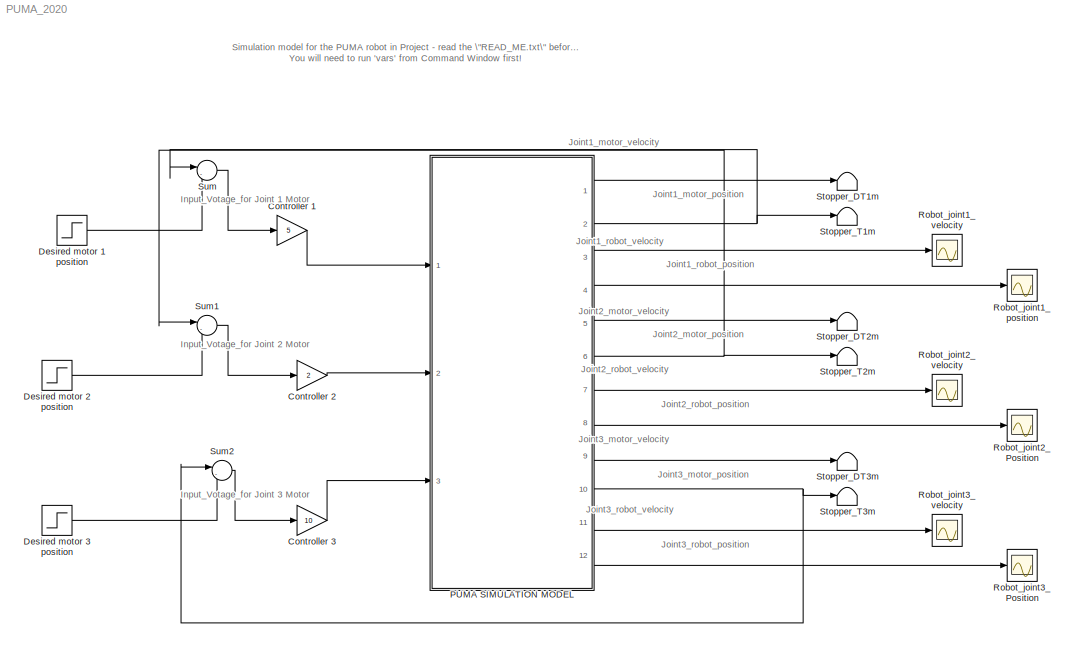
MODEL PUMA_2020
KIND model
BLOCK [Gain] Controller 1
  Gain = 5
  SID = 167
BLOCK [Gain] Controller 2
  Gain = 2
  SID = 169
BLOCK [Gain] Controller 3
  Gain = 10
  SID = 170
BLOCK [Step] Desired motor 1 position
  After = 0.5*ng1
  SID = 86
  SampleTime = 0
  Time = 0
BLOCK [Step] Desired motor 2 position
  After = -1*ng2
  SID = 172
  SampleTime = 0
  Time = 0
BLOCK [Step] Desired motor 3 position
  After = -1*ng3
  SID = 88
  SampleTime = 0
  Time = 0
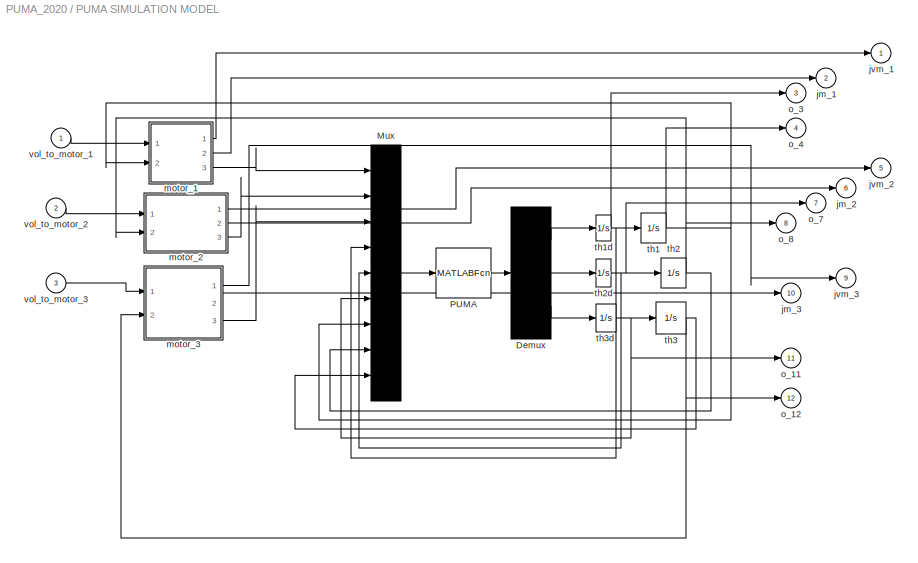
BLOCK [SubSystem] PUMA SIMULATION MODEL
  Ports = [3, 12]
  RequestExecContextInheritance = off
  SID = 1
BLOCK [Demux] PUMA SIMULATION MODEL/Demux
  DisplayOption = none
  Outputs = 3
  Ports = [1, 3]
  SID = 5
BLOCK [Mux] PUMA SIMULATION MODEL/Mux
  Inputs = 9
  Ports = [9, 1]
  SID = 6
BLOCK [MATLABFcn] PUMA SIMULATION MODEL/PUMA
  MATLABFcn = puma
  OutputDimensions = 3
  Ports = [1, 1]
  SID = 7
BLOCK [Outport] PUMA SIMULATION MODEL/jm_1
  InitialOutput = 0
  Port = 2
  SID = 75
  VectorParamsAs1DForOutWhenUnconnected = off
BLOCK [Outport] PUMA SIMULATION MODEL/jm_2
  InitialOutput = 0
  Port = 6
  SID = 79
  VectorParamsAs1DForOutWhenUnconnected = off
BLOCK [Outport] PUMA SIMULATION MODEL/jm_3
  InitialOutput = 0
  Port = 10
  SID = 83
  VectorParamsAs1DForOutWhenUnconnected = off
BLOCK [Outport] PUMA SIMULATION MODEL/jvm_1
  InitialOutput = 0
  SID = 74
  VectorParamsAs1DForOutWhenUnconnected = off
BLOCK [Outport] PUMA SIMULATION MODEL/jvm_2
  InitialOutput = 0
  Port = 5
  SID = 78
  VectorParamsAs1DForOutWhenUnconnected = off
BLOCK [Outport] PUMA SIMULATION MODEL/jvm_3
  InitialOutput = 0
  Port = 9
  SID = 82
  VectorParamsAs1DForOutWhenUnconnected = off
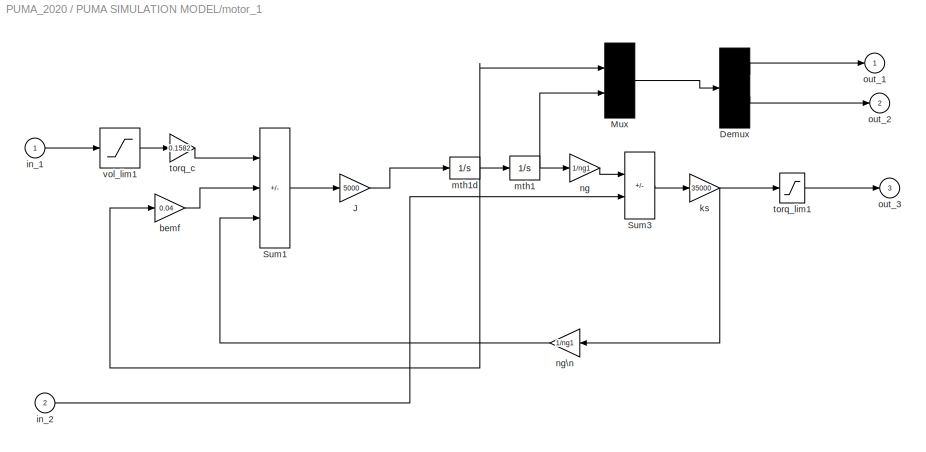
BLOCK [SubSystem] PUMA SIMULATION MODEL/motor_1
  Ports = [2, 3]
  RequestExecContextInheritance = off
  SID = 8
BLOCK [Demux] PUMA SIMULATION MODEL/motor_1/Demux
  DisplayOption = none
  Outputs = 2
  Ports = [1, 2]
  SID = 11
BLOCK [Gain] PUMA SIMULATION MODEL/motor_1/J
  Gain = 5000
  OutDataTypeStr = Inherit: Same as input
  ParamDataTypeStr = Inherit: Same as input
  SID = 12
  SaturateOnIntegerOverflow = on
BLOCK [Mux] PUMA SIMULATION MODEL/motor_1/Mux
  Inputs = 2
  Ports = [2, 1]
  SID = 13
BLOCK [Sum] PUMA SIMULATION MODEL/motor_1/Sum1
  IconShape = rectangular
  InputSameDT = on
  Inputs = +--
  OutDataTypeStr = Inherit: Same as first input
  Ports = [3, 1]
  SID = 14
  SaturateOnIntegerOverflow = on
BLOCK [Sum] PUMA SIMULATION MODEL/motor_1/Sum3
  IconShape = rectangular
  InputSameDT = on
  Inputs = +-
  OutDataTypeStr = Inherit: Same as first input
  Ports = [2, 1]
  SID = 15
  SaturateOnIntegerOverflow = on
BLOCK [Gain] PUMA SIMULATION MODEL/motor_1/bemf
  Gain = 0.04
  OutDataTypeStr = Inherit: Same as input
  ParamDataTypeStr = Inherit: Same as input
  SID = 16
  SaturateOnIntegerOverflow = on
BLOCK [Inport] PUMA SIMULATION MODEL/motor_1/in_1
  SID = 9
BLOCK [Inport] PUMA SIMULATION MODEL/motor_1/in_2
  Port = 2
  SID = 10
BLOCK [Gain] PUMA SIMULATION MODEL/motor_1/ks
  Gain = 35000
  OutDataTypeStr = Inherit: Same as input
  ParamDataTypeStr = Inherit: Same as input
  SID = 17
  SaturateOnIntegerOverflow = on
BLOCK [Integrator] PUMA SIMULATION MODEL/motor_1/mth1
  InitialCondition = ng1*thr10
  Ports = [1, 1]
  SID = 18
BLOCK [Integrator] PUMA SIMULATION MODEL/motor_1/mth1d
  Ports = [1, 1]
  SID = 19
BLOCK [Gain] PUMA SIMULATION MODEL/motor_1/ng
  Gain = 1/ng1
  OutDataTypeStr = Inherit: Same as input
  ParamDataTypeStr = Inherit: Same as input
  SID = 20
  SaturateOnIntegerOverflow = on
BLOCK [Gain] PUMA SIMULATION MODEL/motor_1/ng\n
  Gain = 1/ng1
  OutDataTypeStr = Inherit: Same as input
  ParamDataTypeStr = Inherit: Same as input
  SID = 21
  SaturateOnIntegerOverflow = on
BLOCK [Outport] PUMA SIMULATION MODEL/motor_1/out_1
  InitialOutput = 0
  SID = 25
  VectorParamsAs1DForOutWhenUnconnected = off
BLOCK [Outport] PUMA SIMULATION MODEL/motor_1/out_2
  InitialOutput = 0
  Port = 2
  SID = 26
  VectorParamsAs1DForOutWhenUnconnected = off
BLOCK [Outport] PUMA SIMULATION MODEL/motor_1/out_3
  InitialOutput = 0
  Port = 3
  SID = 27
  VectorParamsAs1DForOutWhenUnconnected = off
BLOCK [Gain] PUMA SIMULATION MODEL/motor_1/torq_c
  Gain = 0.1582
  OutDataTypeStr = Inherit: Same as input
  ParamDataTypeStr = Inherit: Same as input
  SID = 22
  SaturateOnIntegerOverflow = on
BLOCK [Saturate] PUMA SIMULATION MODEL/motor_1/torq_lim1
  LowerLimit = -1.2*ng1
  SID = 23
  UpperLimit = 1.2*ng1
BLOCK [Saturate] PUMA SIMULATION MODEL/motor_1/vol_lim1
  LowerLimit = -40
  SID = 24
  UpperLimit = 40
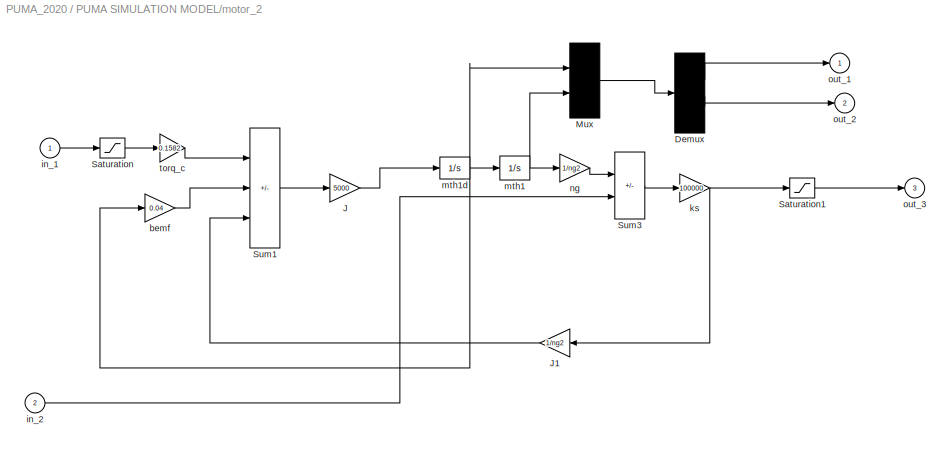
BLOCK [SubSystem] PUMA SIMULATION MODEL/motor_2
  Ports = [2, 3]
  RequestExecContextInheritance = off
  SID = 28
BLOCK [Demux] PUMA SIMULATION MODEL/motor_2/Demux
  DisplayOption = none
  Outputs = 2
  Ports = [1, 2]
  SID = 31
BLOCK [Gain] PUMA SIMULATION MODEL/motor_2/J
  Gain = 5000
  OutDataTypeStr = Inherit: Same as input
  ParamDataTypeStr = Inherit: Same as input
  SID = 32
  SaturateOnIntegerOverflow = on
BLOCK [Gain] PUMA SIMULATION MODEL/motor_2/J1
  Gain = 1/ng2
  OutDataTypeStr = Inherit: Same as input
  ParamDataTypeStr = Inherit: Same as input
  SID = 33
  SaturateOnIntegerOverflow = on
BLOCK [Mux] PUMA SIMULATION MODEL/motor_2/Mux
  Inputs = 2
  Ports = [2, 1]
  SID = 34
BLOCK [Saturate] PUMA SIMULATION MODEL/motor_2/Saturation
  LowerLimit = -40
  SID = 35
  UpperLimit = 40
BLOCK [Saturate] PUMA SIMULATION MODEL/motor_2/Saturation1
  LowerLimit = -ng2*1.2
  SID = 36
  UpperLimit = ng2*1.2
BLOCK [Sum] PUMA SIMULATION MODEL/motor_2/Sum1
  IconShape = rectangular
  InputSameDT = on
  Inputs = +--
  OutDataTypeStr = Inherit: Same as first input
  Ports = [3, 1]
  SID = 37
  SaturateOnIntegerOverflow = on
BLOCK [Sum] PUMA SIMULATION MODEL/motor_2/Sum3
  IconShape = rectangular
  InputSameDT = on
  Inputs = +-
  OutDataTypeStr = Inherit: Same as first input
  Ports = [2, 1]
  SID = 38
  SaturateOnIntegerOverflow = on
BLOCK [Gain] PUMA SIMULATION MODEL/motor_2/bemf
  Gain = 0.04
  OutDataTypeStr = Inherit: Same as input
  ParamDataTypeStr = Inherit: Same as input
  SID = 39
  SaturateOnIntegerOverflow = on
BLOCK [Inport] PUMA SIMULATION MODEL/motor_2/in_1
  SID = 29
BLOCK [Inport] PUMA SIMULATION MODEL/motor_2/in_2
  Port = 2
  SID = 30
BLOCK [Gain] PUMA SIMULATION MODEL/motor_2/ks
  Gain = 100000
  OutDataTypeStr = Inherit: Same as input
  ParamDataTypeStr = Inherit: Same as input
  SID = 40
  SaturateOnIntegerOverflow = on
BLOCK [Integrator] PUMA SIMULATION MODEL/motor_2/mth1
  InitialCondition = thr20*ng2
  Ports = [1, 1]
  SID = 41
BLOCK [Integrator] PUMA SIMULATION MODEL/motor_2/mth1d
  Ports = [1, 1]
  SID = 42
BLOCK [Gain] PUMA SIMULATION MODEL/motor_2/ng
  Gain = 1/ng2
  OutDataTypeStr = Inherit: Same as input
  ParamDataTypeStr = Inherit: Same as input
  SID = 43
  SaturateOnIntegerOverflow = on
BLOCK [Outport] PUMA SIMULATION MODEL/motor_2/out_1
  InitialOutput = 0
  SID = 45
  VectorParamsAs1DForOutWhenUnconnected = off
BLOCK [Outport] PUMA SIMULATION MODEL/motor_2/out_2
  InitialOutput = 0
  Port = 2
  SID = 46
  VectorParamsAs1DForOutWhenUnconnected = off
BLOCK [Outport] PUMA SIMULATION MODEL/motor_2/out_3
  InitialOutput = 0
  Port = 3
  SID = 47
  VectorParamsAs1DForOutWhenUnconnected = off
BLOCK [Gain] PUMA SIMULATION MODEL/motor_2/torq_c
  Gain = 0.1582
  OutDataTypeStr = Inherit: Same as input
  ParamDataTypeStr = Inherit: Same as input
  SID = 44
  SaturateOnIntegerOverflow = on
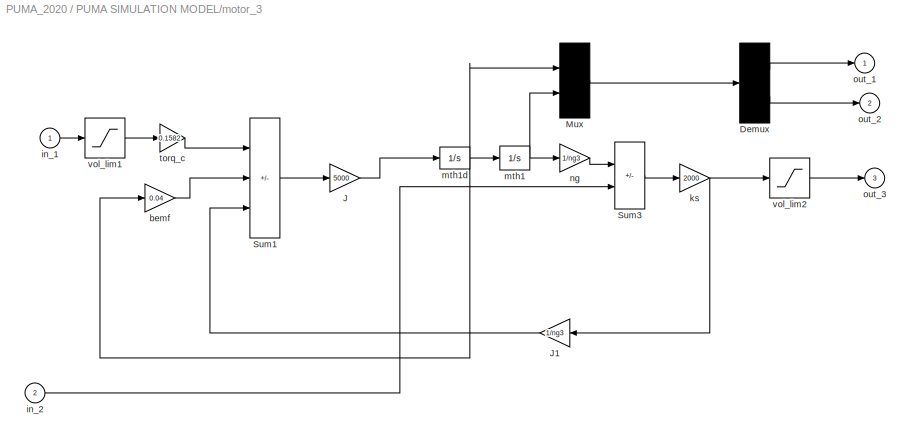
BLOCK [SubSystem] PUMA SIMULATION MODEL/motor_3
  Ports = [2, 3]
  RequestExecContextInheritance = off
  SID = 48
BLOCK [Demux] PUMA SIMULATION MODEL/motor_3/Demux
  DisplayOption = none
  Outputs = 2
  Ports = [1, 2]
  SID = 51
BLOCK [Gain] PUMA SIMULATION MODEL/motor_3/J
  Gain = 5000
  OutDataTypeStr = Inherit: Same as input
  ParamDataTypeStr = Inherit: Same as input
  SID = 52
  SaturateOnIntegerOverflow = on
BLOCK [Gain] PUMA SIMULATION MODEL/motor_3/J1
  Gain = 1/ng3
  OutDataTypeStr = Inherit: Same as input
  ParamDataTypeStr = Inherit: Same as input
  SID = 53
  SaturateOnIntegerOverflow = on
BLOCK [Mux] PUMA SIMULATION MODEL/motor_3/Mux
  Inputs = 2
  Ports = [2, 1]
  SID = 54
BLOCK [Sum] PUMA SIMULATION MODEL/motor_3/Sum1
  IconShape = rectangular
  InputSameDT = on
  Inputs = +--
  OutDataTypeStr = Inherit: Same as first input
  Ports = [3, 1]
  SID = 55
  SaturateOnIntegerOverflow = on
BLOCK [Sum] PUMA SIMULATION MODEL/motor_3/Sum3
  IconShape = rectangular
  InputSameDT = on
  Inputs = +-
  OutDataTypeStr = Inherit: Same as first input
  Ports = [2, 1]
  SID = 56
  SaturateOnIntegerOverflow = on
BLOCK [Gain] PUMA SIMULATION MODEL/motor_3/bemf
  Gain = 0.04
  OutDataTypeStr = Inherit: Same as input
  ParamDataTypeStr = Inherit: Same as input
  SID = 57
  SaturateOnIntegerOverflow = on
BLOCK [Inport] PUMA SIMULATION MODEL/motor_3/in_1
  SID = 49
BLOCK [Inport] PUMA SIMULATION MODEL/motor_3/in_2
  Port = 2
  SID = 50
BLOCK [Gain] PUMA SIMULATION MODEL/motor_3/ks
  Gain = 2000
  OutDataTypeStr = Inherit: Same as input
  ParamDataTypeStr = Inherit: Same as input
  SID = 58
  SaturateOnIntegerOverflow = on
BLOCK [Integrator] PUMA SIMULATION MODEL/motor_3/mth1
  InitialCondition = thr30*ng3
  Ports = [1, 1]
  SID = 59
BLOCK [Integrator] PUMA SIMULATION MODEL/motor_3/mth1d
  Ports = [1, 1]
  SID = 60
BLOCK [Gain] PUMA SIMULATION MODEL/motor_3/ng
  Gain = 1/ng3
  OutDataTypeStr = Inherit: Same as input
  ParamDataTypeStr = Inherit: Same as input
  SID = 61
  SaturateOnIntegerOverflow = on
BLOCK [Outport] PUMA SIMULATION MODEL/motor_3/out_1
  InitialOutput = 0
  SID = 65
  VectorParamsAs1DForOutWhenUnconnected = off
BLOCK [Outport] PUMA SIMULATION MODEL/motor_3/out_2
  InitialOutput = 0
  Port = 2
  SID = 66
  VectorParamsAs1DForOutWhenUnconnected = off
BLOCK [Outport] PUMA SIMULATION MODEL/motor_3/out_3
  InitialOutput = 0
  Port = 3
  SID = 67
  VectorParamsAs1DForOutWhenUnconnected = off
BLOCK [Gain] PUMA SIMULATION MODEL/motor_3/torq_c
  Gain = 0.1582
  OutDataTypeStr = Inherit: Same as input
  ParamDataTypeStr = Inherit: Same as input
  SID = 62
  SaturateOnIntegerOverflow = on
BLOCK [Saturate] PUMA SIMULATION MODEL/motor_3/vol_lim1
  LowerLimit = -40
  SID = 63
  UpperLimit = 40
BLOCK [Saturate] PUMA SIMULATION MODEL/motor_3/vol_lim2
  LowerLimit = -1.2*ng3
  SID = 64
  UpperLimit = 1.2*ng3
BLOCK [Outport] PUMA SIMULATION MODEL/o_11
  InitialOutput = 0
  Port = 11
  SID = 84
  VectorParamsAs1DForOutWhenUnconnected = off
BLOCK [Outport] PUMA SIMULATION MODEL/o_12
  InitialOutput = 0
  Port = 12
  SID = 85
  VectorParamsAs1DForOutWhenUnconnected = off
BLOCK [Outport] PUMA SIMULATION MODEL/o_3
  InitialOutput = 0
  Port = 3
  SID = 76
  VectorParamsAs1DForOutWhenUnconnected = off
BLOCK [Outport] PUMA SIMULATION MODEL/o_4
  InitialOutput = 0
  Port = 4
  SID = 77
  VectorParamsAs1DForOutWhenUnconnected = off
BLOCK [Outport] PUMA SIMULATION MODEL/o_7
  InitialOutput = 0
  Port = 7
  SID = 80
  VectorParamsAs1DForOutWhenUnconnected = off
BLOCK [Outport] PUMA SIMULATION MODEL/o_8
  InitialOutput = 0
  Port = 8
  SID = 81
  VectorParamsAs1DForOutWhenUnconnected = off
BLOCK [Integrator] PUMA SIMULATION MODEL/th1
  InitialCondition = thr10
  Ports = [1, 1]
  SID = 68
BLOCK [Integrator] PUMA SIMULATION MODEL/th1d
  Ports = [1, 1]
  SID = 69
BLOCK [Integrator] PUMA SIMULATION MODEL/th2
  InitialCondition = thr20
  Ports = [1, 1]
  SID = 70
BLOCK [Integrator] PUMA SIMULATION MODEL/th2d
  Ports = [1, 1]
  SID = 71
BLOCK [Integrator] PUMA SIMULATION MODEL/th3
  InitialCondition = thr30
  Ports = [1, 1]
  SID = 72
BLOCK [Integrator] PUMA SIMULATION MODEL/th3d
  Ports = [1, 1]
  SID = 73
BLOCK [Inport] PUMA SIMULATION MODEL/vol_to_motor_1
  SID = 2
BLOCK [Inport] PUMA SIMULATION MODEL/vol_to_motor_2
  Port = 2
  SID = 3
BLOCK [Inport] PUMA SIMULATION MODEL/vol_to_motor_3
  Port = 3
  SID = 4
BLOCK [Scope] Robot_joint1_position
  Floating = off
  NumInputPorts = 1
  Ports = [1]
  SID = 147
  ScopeSpecificationString = Simulink.scopes.TimeScopeBlockCfg('CurrentConfiguration', extmgr.ConfigurationSet(extmgr.Configuration('Core','General UI',true),extmgr.Configuration('Core','Source UI',true),extmgr.Configuration('Sources','WiredSimulink',true,'DataLoggingVariableName','ScopeData1','DataLoggingSaveFormat','StructureWithTime','DataLoggingLimitDataPoints',true,'DataLoggingDecimation','1','DataLoggingDecimateData',tr...<+1695ch>
BLOCK [Scope] Robot_joint1_velocity
  Floating = off
  NumInputPorts = 1
  Ports = [1]
  SID = 146
  ScopeSpecificationString = Simulink.scopes.TimeScopeBlockCfg('CurrentConfiguration', extmgr.ConfigurationSet(extmgr.Configuration('Core','General UI',true),extmgr.Configuration('Core','Source UI',true),extmgr.Configuration('Sources','WiredSimulink',true,'DataLoggingSaveFormat','StructureWithTime','DataLoggingLimitDataPoints',true,'DataLoggingDecimation','1','DataLoggingDecimateData',true),extmgr.Configuration('Visuals','Tim...<+1657ch>
BLOCK [Scope] Robot_joint2_Position
  Floating = off
  NumInputPorts = 1
  Ports = [1]
  SID = 165
  ScopeSpecificationString = Simulink.scopes.TimeScopeBlockCfg('CurrentConfiguration', extmgr.ConfigurationSet(extmgr.Configuration('Core','General UI',true),extmgr.Configuration('Core','Source UI',true),extmgr.Configuration('Sources','WiredSimulink',true,'DataLoggingVariableName','ScopeData6','DataLoggingSaveFormat','StructureWithTime','DataLoggingLimitDataPoints',true,'DataLoggingDecimation','1','DataLoggingDecimateData',tr...<+1698ch>
BLOCK [Scope] Robot_joint2_velocity
  Floating = off
  NumInputPorts = 1
  Ports = [1]
  SID = 164
  ScopeSpecificationString = Simulink.scopes.TimeScopeBlockCfg('CurrentConfiguration', extmgr.ConfigurationSet(extmgr.Configuration('Core','General UI',true),extmgr.Configuration('Core','Source UI',true),extmgr.Configuration('Sources','WiredSimulink',true,'DataLoggingVariableName','ScopeData3','DataLoggingSaveFormat','StructureWithTime','DataLoggingLimitDataPoints',true,'DataLoggingDecimation','1','DataLoggingDecimateData',tr...<+1696ch>
BLOCK [Scope] Robot_joint3_Position
  Floating = off
  NumInputPorts = 1
  Ports = [1]
  SID = 150
  ScopeSpecificationString = Simulink.scopes.TimeScopeBlockCfg('CurrentConfiguration', extmgr.ConfigurationSet(extmgr.Configuration('Core','General UI',true),extmgr.Configuration('Core','Source UI',true),extmgr.Configuration('Sources','WiredSimulink',true,'DataLoggingVariableName','ScopeData5','DataLoggingSaveFormat','StructureWithTime','DataLoggingLimitDataPoints',true,'DataLoggingDecimation','1','DataLoggingDecimateData',tr...<+1697ch>
BLOCK [Scope] Robot_joint3_velocity
  Floating = off
  NumInputPorts = 1
  Ports = [1]
  SID = 149
  ScopeSpecificationString = Simulink.scopes.TimeScopeBlockCfg('CurrentConfiguration', extmgr.ConfigurationSet(extmgr.Configuration('Core','General UI',true),extmgr.Configuration('Core','Source UI',true),extmgr.Configuration('Sources','WiredSimulink',true,'DataLoggingVariableName','ScopeData4','DataLoggingSaveFormat','StructureWithTime','DataLoggingLimitDataPoints',true,'DataLoggingDecimation','1','DataLoggingDecimateData',tr...<+911ch>
BLOCK [Terminator] Stopper_DT1m
  SID = 123
BLOCK [Terminator] Stopper_DT2m
  SID = 125
BLOCK [Terminator] Stopper_DT3m
  SID = 127
BLOCK [Terminator] Stopper_T1m
  SID = 124
BLOCK [Terminator] Stopper_T2m
  SID = 145
BLOCK [Terminator] Stopper_T3m
  SID = 128
BLOCK [Sum] Sum
  Inputs = |-+
  Ports = [2, 1]
  SID = 166
BLOCK [Sum] Sum1
  Inputs = |-+
  Ports = [2, 1]
  SID = 168
BLOCK [Sum] Sum2
  Inputs = |-+
  Ports = [2, 1]
  SID = 171
ANNOTATION (root): Input_Votage_for Joint 1 Motor
ANNOTATION (root): Input_Votage_for Joint 2 Motor
ANNOTATION (root): Input_Votage_for Joint 3 Motor
ANNOTATION (root): Joint1_motor_position
ANNOTATION (root): Joint1_motor_velocity
ANNOTATION (root): Joint1_robot_position
ANNOTATION (root): Joint1_robot_velocity
ANNOTATION (root): Joint2_motor_position
ANNOTATION (root): Joint2_motor_velocity
ANNOTATION (root): Joint2_robot_position
ANNOTATION (root): Joint2_robot_velocity
ANNOTATION (root): Joint3_motor_position
ANNOTATION (root): Joint3_motor_velocity
ANNOTATION (root): Joint3_robot_position
ANNOTATION (root): Joint3_robot_velocity
ANNOTATION (root): Simulation model for the PUMA robot in Project - read the \"READ_ME.txt\" before running this simulation\nYou will need to run 'vars' from Command Window first!
LINE Controller 1:1 -> PUMA SIMULATION MODEL:1
LINE Controller 2:1 -> PUMA SIMULATION MODEL:2
LINE Controller 3:1 -> PUMA SIMULATION MODEL:3
LINE Desired motor 1 position:1 -> Sum:2
LINE Desired motor 2 position:1 -> Sum1:2
LINE Desired motor 3 position:1 -> Sum2:2
LINE PUMA SIMULATION MODEL/Demux:1 -> PUMA SIMULATION MODEL/th1d:1
LINE PUMA SIMULATION MODEL/Demux:2 -> PUMA SIMULATION MODEL/th2d:1
LINE PUMA SIMULATION MODEL/Demux:3 -> PUMA SIMULATION MODEL/th3d:1
LINE PUMA SIMULATION MODEL/Mux:1 -> PUMA SIMULATION MODEL/PUMA:1
LINE PUMA SIMULATION MODEL/PUMA:1 -> PUMA SIMULATION MODEL/Demux:1
LINE PUMA SIMULATION MODEL/motor_1/Demux:1 -> PUMA SIMULATION MODEL/motor_1/out_1:1
LINE PUMA SIMULATION MODEL/motor_1/Demux:2 -> PUMA SIMULATION MODEL/motor_1/out_2:1
LINE PUMA SIMULATION MODEL/motor_1/J:1 -> PUMA SIMULATION MODEL/motor_1/mth1d:1
LINE PUMA SIMULATION MODEL/motor_1/Mux:1 -> PUMA SIMULATION MODEL/motor_1/Demux:1
LINE PUMA SIMULATION MODEL/motor_1/Sum1:1 -> PUMA SIMULATION MODEL/motor_1/J:1
LINE PUMA SIMULATION MODEL/motor_1/Sum3:1 -> PUMA SIMULATION MODEL/motor_1/ks:1
LINE PUMA SIMULATION MODEL/motor_1/bemf:1 -> PUMA SIMULATION MODEL/motor_1/Sum1:2
LINE PUMA SIMULATION MODEL/motor_1/in_1:1 -> PUMA SIMULATION MODEL/motor_1/vol_lim1:1
LINE PUMA SIMULATION MODEL/motor_1/in_2:1 -> PUMA SIMULATION MODEL/motor_1/Sum3:2
NET PUMA SIMULATION MODEL/motor_1/ks:1 -> PUMA SIMULATION MODEL/motor_1/ng\n:1, PUMA SIMULATION MODEL/motor_1/torq_lim1:1
NET PUMA SIMULATION MODEL/motor_1/mth1:1 -> PUMA SIMULATION MODEL/motor_1/Mux:2, PUMA SIMULATION MODEL/motor_1/ng:1
NET PUMA SIMULATION MODEL/motor_1/mth1d:1 -> PUMA SIMULATION MODEL/motor_1/Mux:1, PUMA SIMULATION MODEL/motor_1/bemf:1, PUMA SIMULATION MODEL/motor_1/mth1:1
LINE PUMA SIMULATION MODEL/motor_1/ng:1 -> PUMA SIMULATION MODEL/motor_1/Sum3:1
LINE PUMA SIMULATION MODEL/motor_1/ng\n:1 -> PUMA SIMULATION MODEL/motor_1/Sum1:3
LINE PUMA SIMULATION MODEL/motor_1/torq_c:1 -> PUMA SIMULATION MODEL/motor_1/Sum1:1
LINE PUMA SIMULATION MODEL/motor_1/torq_lim1:1 -> PUMA SIMULATION MODEL/motor_1/out_3:1
LINE PUMA SIMULATION MODEL/motor_1/vol_lim1:1 -> PUMA SIMULATION MODEL/motor_1/torq_c:1
LINE PUMA SIMULATION MODEL/motor_1:1 -> PUMA SIMULATION MODEL/jvm_1:1
LINE PUMA SIMULATION MODEL/motor_1:2 -> PUMA SIMULATION MODEL/jm_1:1
LINE PUMA SIMULATION MODEL/motor_1:3 -> PUMA SIMULATION MODEL/Mux:1
LINE PUMA SIMULATION MODEL/motor_2/Demux:1 -> PUMA SIMULATION MODEL/motor_2/out_1:1
LINE PUMA SIMULATION MODEL/motor_2/Demux:2 -> PUMA SIMULATION MODEL/motor_2/out_2:1
LINE PUMA SIMULATION MODEL/motor_2/J1:1 -> PUMA SIMULATION MODEL/motor_2/Sum1:3
LINE PUMA SIMULATION MODEL/motor_2/J:1 -> PUMA SIMULATION MODEL/motor_2/mth1d:1
LINE PUMA SIMULATION MODEL/motor_2/Mux:1 -> PUMA SIMULATION MODEL/motor_2/Demux:1
LINE PUMA SIMULATION MODEL/motor_2/Saturation1:1 -> PUMA SIMULATION MODEL/motor_2/out_3:1
LINE PUMA SIMULATION MODEL/motor_2/Saturation:1 -> PUMA SIMULATION MODEL/motor_2/torq_c:1
LINE PUMA SIMULATION MODEL/motor_2/Sum1:1 -> PUMA SIMULATION MODEL/motor_2/J:1
LINE PUMA SIMULATION MODEL/motor_2/Sum3:1 -> PUMA SIMULATION MODEL/motor_2/ks:1
LINE PUMA SIMULATION MODEL/motor_2/bemf:1 -> PUMA SIMULATION MODEL/motor_2/Sum1:2
LINE PUMA SIMULATION MODEL/motor_2/in_1:1 -> PUMA SIMULATION MODEL/motor_2/Saturation:1
LINE PUMA SIMULATION MODEL/motor_2/in_2:1 -> PUMA SIMULATION MODEL/motor_2/Sum3:2
NET PUMA SIMULATION MODEL/motor_2/ks:1 -> PUMA SIMULATION MODEL/motor_2/J1:1, PUMA SIMULATION MODEL/motor_2/Saturation1:1
NET PUMA SIMULATION MODEL/motor_2/mth1:1 -> PUMA SIMULATION MODEL/motor_2/Mux:2, PUMA SIMULATION MODEL/motor_2/ng:1
NET PUMA SIMULATION MODEL/motor_2/mth1d:1 -> PUMA SIMULATION MODEL/motor_2/Mux:1, PUMA SIMULATION MODEL/motor_2/bemf:1, PUMA SIMULATION MODEL/motor_2/mth1:1
LINE PUMA SIMULATION MODEL/motor_2/ng:1 -> PUMA SIMULATION MODEL/motor_2/Sum3:1
LINE PUMA SIMULATION MODEL/motor_2/torq_c:1 -> PUMA SIMULATION MODEL/motor_2/Sum1:1
LINE PUMA SIMULATION MODEL/motor_2:1 -> PUMA SIMULATION MODEL/jvm_2:1
LINE PUMA SIMULATION MODEL/motor_2:2 -> PUMA SIMULATION MODEL/jm_2:1
LINE PUMA SIMULATION MODEL/motor_2:3 -> PUMA SIMULATION MODEL/Mux:2
LINE PUMA SIMULATION MODEL/motor_3/Demux:1 -> PUMA SIMULATION MODEL/motor_3/out_1:1
LINE PUMA SIMULATION MODEL/motor_3/Demux:2 -> PUMA SIMULATION MODEL/motor_3/out_2:1
LINE PUMA SIMULATION MODEL/motor_3/J1:1 -> PUMA SIMULATION MODEL/motor_3/Sum1:3
LINE PUMA SIMULATION MODEL/motor_3/J:1 -> PUMA SIMULATION MODEL/motor_3/mth1d:1
LINE PUMA SIMULATION MODEL/motor_3/Mux:1 -> PUMA SIMULATION MODEL/motor_3/Demux:1
LINE PUMA SIMULATION MODEL/motor_3/Sum1:1 -> PUMA SIMULATION MODEL/motor_3/J:1
LINE PUMA SIMULATION MODEL/motor_3/Sum3:1 -> PUMA SIMULATION MODEL/motor_3/ks:1
LINE PUMA SIMULATION MODEL/motor_3/bemf:1 -> PUMA SIMULATION MODEL/motor_3/Sum1:2
LINE PUMA SIMULATION MODEL/motor_3/in_1:1 -> PUMA SIMULATION MODEL/motor_3/vol_lim1:1
LINE PUMA SIMULATION MODEL/motor_3/in_2:1 -> PUMA SIMULATION MODEL/motor_3/Sum3:2
NET PUMA SIMULATION MODEL/motor_3/ks:1 -> PUMA SIMULATION MODEL/motor_3/J1:1, PUMA SIMULATION MODEL/motor_3/vol_lim2:1
NET PUMA SIMULATION MODEL/motor_3/mth1:1 -> PUMA SIMULATION MODEL/motor_3/Mux:2, PUMA SIMULATION MODEL/motor_3/ng:1
NET PUMA SIMULATION MODEL/motor_3/mth1d:1 -> PUMA SIMULATION MODEL/motor_3/Mux:1, PUMA SIMULATION MODEL/motor_3/bemf:1, PUMA SIMULATION MODEL/motor_3/mth1:1
LINE PUMA SIMULATION MODEL/motor_3/ng:1 -> PUMA SIMULATION MODEL/motor_3/Sum3:1
LINE PUMA SIMULATION MODEL/motor_3/torq_c:1 -> PUMA SIMULATION MODEL/motor_3/Sum1:1
LINE PUMA SIMULATION MODEL/motor_3/vol_lim1:1 -> PUMA SIMULATION MODEL/motor_3/torq_c:1
LINE PUMA SIMULATION MODEL/motor_3/vol_lim2:1 -> PUMA SIMULATION MODEL/motor_3/out_3:1
LINE PUMA SIMULATION MODEL/motor_3:1 -> PUMA SIMULATION MODEL/jvm_3:1
LINE PUMA SIMULATION MODEL/motor_3:2 -> PUMA SIMULATION MODEL/jm_3:1
LINE PUMA SIMULATION MODEL/motor_3:3 -> PUMA SIMULATION MODEL/Mux:3
NET PUMA SIMULATION MODEL/th1:1 -> PUMA SIMULATION MODEL/Mux:7, PUMA SIMULATION MODEL/motor_1:2, PUMA SIMULATION MODEL/o_4:1
NET PUMA SIMULATION MODEL/th1d:1 -> PUMA SIMULATION MODEL/Mux:4, PUMA SIMULATION MODEL/o_3:1, PUMA SIMULATION MODEL/th1:1
NET PUMA SIMULATION MODEL/th2:1 -> PUMA SIMULATION MODEL/Mux:8, PUMA SIMULATION MODEL/motor_2:2, PUMA SIMULATION MODEL/o_8:1
NET PUMA SIMULATION MODEL/th2d:1 -> PUMA SIMULATION MODEL/Mux:5, PUMA SIMULATION MODEL/o_7:1, PUMA SIMULATION MODEL/th2:1
NET PUMA SIMULATION MODEL/th3:1 -> PUMA SIMULATION MODEL/Mux:9, PUMA SIMULATION MODEL/motor_3:2, PUMA SIMULATION MODEL/o_12:1
NET PUMA SIMULATION MODEL/th3d:1 -> PUMA SIMULATION MODEL/Mux:6, PUMA SIMULATION MODEL/o_11:1, PUMA SIMULATION MODEL/th3:1
LINE PUMA SIMULATION MODEL/vol_to_motor_1:1 -> PUMA SIMULATION MODEL/motor_1:1
LINE PUMA SIMULATION MODEL/vol_to_motor_2:1 -> PUMA SIMULATION MODEL/motor_2:1
LINE PUMA SIMULATION MODEL/vol_to_motor_3:1 -> PUMA SIMULATION MODEL/motor_3:1
LINE PUMA SIMULATION MODEL:1 -> Stopper_DT1m:1
NET PUMA SIMULATION MODEL:10 -> Stopper_T3m:1, Sum2:1
LINE PUMA SIMULATION MODEL:11 -> Robot_joint3_velocity:1
LINE PUMA SIMULATION MODEL:12 -> Robot_joint3_Position:1
NET PUMA SIMULATION MODEL:2 -> Stopper_T1m:1, Sum:1
LINE PUMA SIMULATION MODEL:3 -> Robot_joint1_velocity:1
LINE PUMA SIMULATION MODEL:4 -> Robot_joint1_position:1
LINE PUMA SIMULATION MODEL:5 -> Stopper_DT2m:1
NET PUMA SIMULATION MODEL:6 -> Stopper_T2m:1, Sum1:1
LINE PUMA SIMULATION MODEL:7 -> Robot_joint2_velocity:1
LINE PUMA SIMULATION MODEL:8 -> Robot_joint2_Position:1
LINE PUMA SIMULATION MODEL:9 -> Stopper_DT3m:1
LINE Sum1:1 -> Controller 2:1
LINE Sum2:1 -> Controller 3:1
LINE Sum:1 -> Controller 1:1
note: NET lines group one-source signal fan-out (src -> all destinations, sorted); 1:1 wires keep LINE
